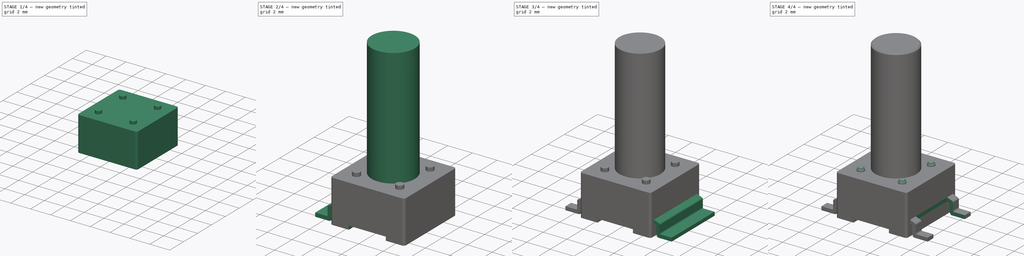
[diagram: build sequence overview — one tinted view per stage of 4, left to right]
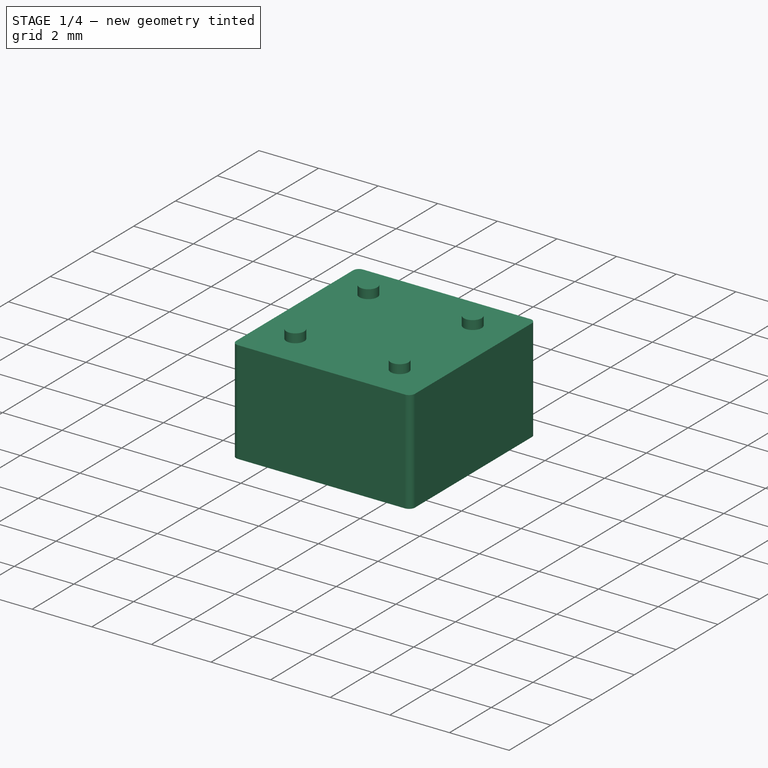
[diagram: stage 1 of 4 — iso view after this stage's code; geometry added in this stage tinted green]
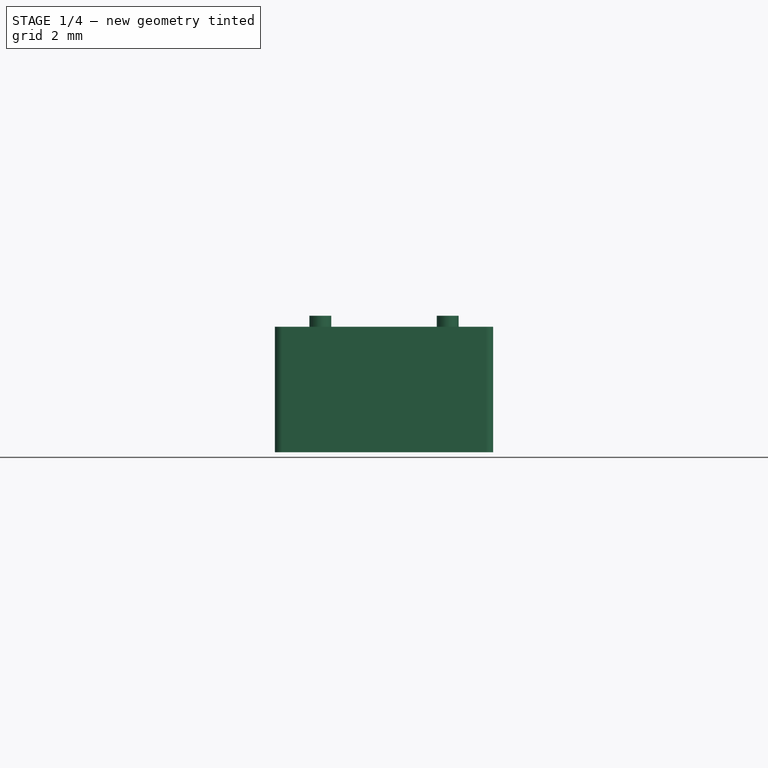
[diagram: stage 1 of 4 — front view after this stage's code; geometry added in this stage tinted green]
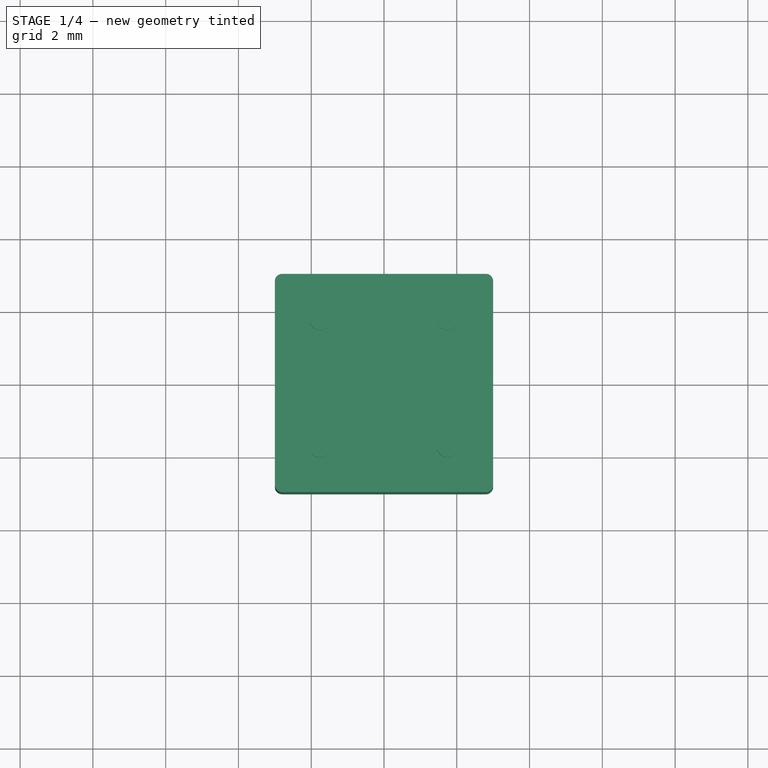
[diagram: stage 1 of 4 — top view after this stage's code; geometry added in this stage tinted green]
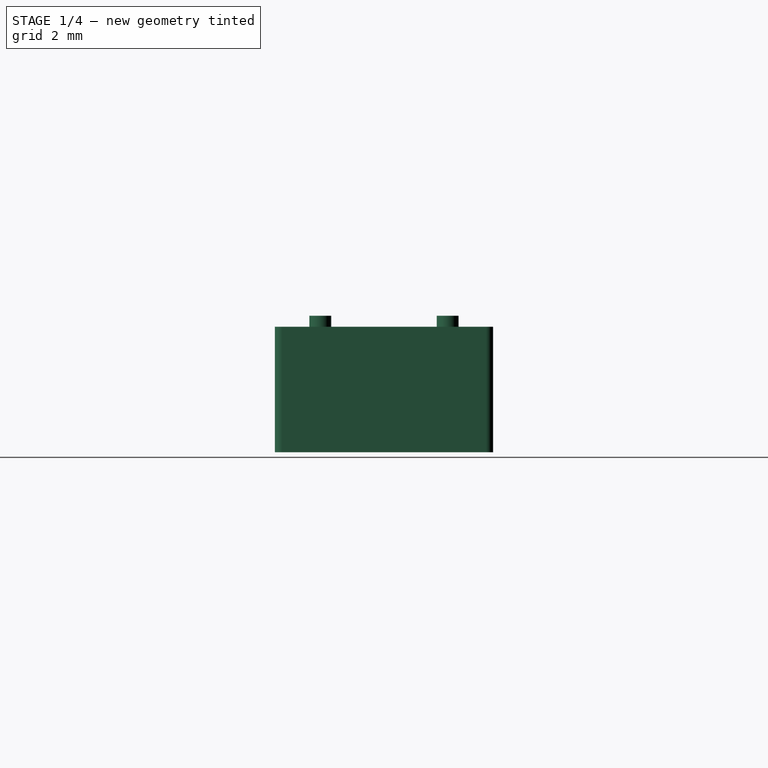
[diagram: stage 1 of 4 — right view after this stage's code; geometry added in this stage tinted green]
FCSTD DOCUMENT  (FreeCAD 1.0R39109 (Git))
Label: Tactile_Switch
License: All rights reserved
LicenseURL: https://en.wikipedia.org/wiki/All_rights_reserved
objects: Sketcher::SketchObject×9, PartDesign::Pad×6, PartDesign::Pocket×3, Part::Feature×1, PartDesign::SubShapeBinder×1, PartDesign::Fillet×1, PartDesign::Chamfer×1, PartDesign::Body×1
note: 54 computed .brp shape members not serialized (recipe doc carries the construction recipe); baked Part::Feature solids carry a one-line shape summary decoded from their .brp

FEATURE [Part::Feature] Part__Feature  label="SW_SPST_PTS645"
  shape: bbox 9 x 6 x 4.3 mm, 97 faces (baked)
FEATURE [PartDesign::SubShapeBinder] Binder
  BindCopyOnChange = 0
  BindMode = 0
  ClaimChildren = false
  Context = -> Body [Binder.]
  Fuse = false
  MakeFace = true
  OffsetFill = false
  OffsetIntersection = false
  OffsetJoinType = 0
  OffsetOpenResult = false
  PartialLoad = false
  Refine = true
  Relative = true
  Support = -> [Part__Feature]
  _Version = 2
FEATURE [Sketcher::SketchObject] Sketch
  ArcFitTolerance = 1e-06
  AttachmentSupport = -> [XY_Plane]
  ExternalGeometry = -> [Binder]
  FullyConstrained = false
  MakeInternals = false
  MapMode = 5
  sketch-geometry (8):
    g0: LineSegment StartX=-2.8 StartY=3 StartZ=0 EndX=2.8 EndY=3 EndZ=0
    g1: LineSegment StartX=3 StartY=2.8 StartZ=0 EndX=3 EndY=-2.8 EndZ=0
    g2: LineSegment StartX=-3 StartY=-2.8 StartZ=0 EndX=-3 EndY=2.8 EndZ=0
    g3: LineSegment StartX=-2.8 StartY=-3 StartZ=0 EndX=2.8 EndY=-3 EndZ=0
    g4: ArcOfCircle CenterX=-2.8 CenterY=2.8 CenterZ=0 NormalX=0 NormalY=0 NormalZ=1 AngleXU=0 Radius=0.2 StartAngle=1.5708 EndAngle=3.14159
    g5: ArcOfCircle CenterX=2.8 CenterY=2.8 CenterZ=0 NormalX=0 NormalY=0 NormalZ=1 AngleXU=0 Radius=0.2 StartAngle=0 EndAngle=1.5708
    g6: ArcOfCircle CenterX=2.8 CenterY=-2.8 CenterZ=0 NormalX=0 NormalY=0 NormalZ=1 AngleXU=0 Radius=0.2 StartAngle=4.71239 EndAngle=6.28318
    g7: ArcOfCircle CenterX=-2.8 CenterY=-2.8 CenterZ=0 NormalX=0 NormalY=0 NormalZ=1 AngleXU=0 Radius=0.2 StartAngle=3.14159 EndAngle=4.71239
  constraints (12):
    c: Coincident(g4,g-3)
    c: Coincident(g4,g2)
    c: Coincident(g4,g0)
    c: Coincident(g5,g-5)
    c: Coincident(g5,g0)
    c: Coincident(g5,g1)
    c: Coincident(g6,g-7)
    c: Coincident(g6,g1)
    c: Coincident(g6,g3)
    c: Coincident(g7,g-9)
    c: Coincident(g7,g3)
    c: Coincident(g7,g2)
FEATURE [PartDesign::Pad] Pad
  Direction = (0,0,1)
  Length = 3.45
  Length2 = 10
  Profile = -> Sketch
  ReferenceAxis = -> Sketch [N_Axis]
  Refine = true
  Suppressed = false
  Type = 0
FEATURE [Sketcher::SketchObject] Sketch002
  ArcFitTolerance = 1e-06
  ExternalGeometry = -> [Binder]
  FullyConstrained = true
  MakeInternals = false
  MapMode = 5
  Placement = pos=(0,0,3.45) rot=(0,0,1;0rad)
  sketch-geometry (4):
    g0: Circle CenterX=-1.75 CenterY=1.75 CenterZ=0 NormalX=0 NormalY=0 NormalZ=1 AngleXU=0 Radius=0.3
    g1: Circle CenterX=1.75 CenterY=1.75 CenterZ=0 NormalX=0 NormalY=0 NormalZ=1 AngleXU=0 Radius=0.3
    g2: Circle CenterX=1.75 CenterY=-1.75 CenterZ=0 NormalX=0 NormalY=0 NormalZ=1 AngleXU=0 Radius=0.3
    g3: Circle CenterX=-1.75 CenterY=-1.75 CenterZ=0 NormalX=0 NormalY=0 NormalZ=1 AngleXU=0 Radius=0.3
  constraints (8):
    c: Coincident(g0,g-3)
    c: Equal(g0,g-3)
    c: Coincident(g1,g-4)
    c: Equal(g1,g-4)
    c: Coincident(g2,g-5)
    c: Equal(g2,g-5)
    c: Coincident(g3,g-6)
    c: Equal(g3,g-6)
FEATURE [PartDesign::Pad] Pad001
  BaseFeature = -> Pad
  Direction = (0,0,1)
  Length = 0.05
  Length2 = 10
  Profile = -> Sketch002
  ReferenceAxis = -> Sketch002 [N_Axis]
  Refine = true
  Suppressed = false
  Type = 0
FEATURE [Sketcher::SketchObject] Sketch003
  ArcFitTolerance = 1e-06
  AttachmentSupport = -> [Pad001]
  ExternalGeometry = -> [Pad001]
  FullyConstrained = true
  MakeInternals = false
  MapMode = 5
  Placement = pos=(0,0,3.5) rot=(0,0,1;0rad)
  sketch-geometry (4):
    g0: Circle CenterX=-1.75 CenterY=1.75 CenterZ=0 NormalX=0 NormalY=0 NormalZ=1 AngleXU=0 Radius=0.3
    g1: Circle CenterX=1.75 CenterY=1.75 CenterZ=0 NormalX=0 NormalY=0 NormalZ=1 AngleXU=0 Radius=0.3
    g2: Circle CenterX=1.75 CenterY=-1.75 CenterZ=0 NormalX=0 NormalY=0 NormalZ=1 AngleXU=0 Radius=0.3
    g3: Circle CenterX=-1.75 CenterY=-1.75 CenterZ=0 NormalX=0 NormalY=0 NormalZ=1 AngleXU=0 Radius=0.3
  constraints (8):
    c: Coincident(g0,g-3)
    c: Equal(g0,g-3)
    c: Coincident(g1,g-4)
    c: Equal(g1,g-4)
    c: Coincident(g2,g-5)
    c: Equal(g2,g-5)
    c: Coincident(g3,g-6)
    c: Equal(g3,g-6)
FEATURE [PartDesign::Pad] Pad002
  BaseFeature = -> Pad001
  Direction = (0,0,1)
  Length = 0.25
  Length2 = 10
  Profile = -> Sketch003
  ReferenceAxis = -> Sketch003 [N_Axis]
  Refine = true
  Suppressed = false
  Type = 0
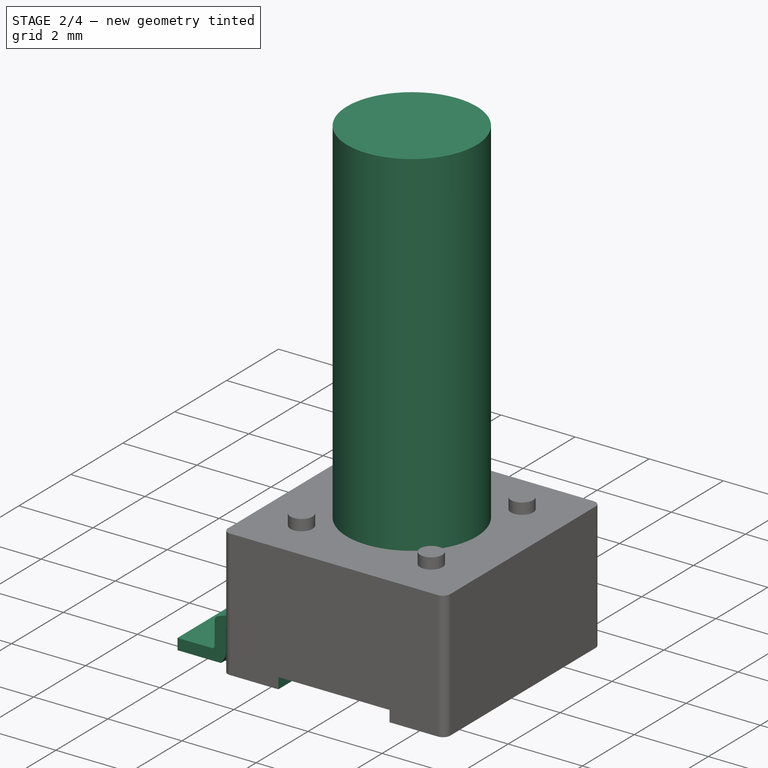
[diagram: stage 2 of 4 — iso view after this stage's code; geometry added in this stage tinted green]
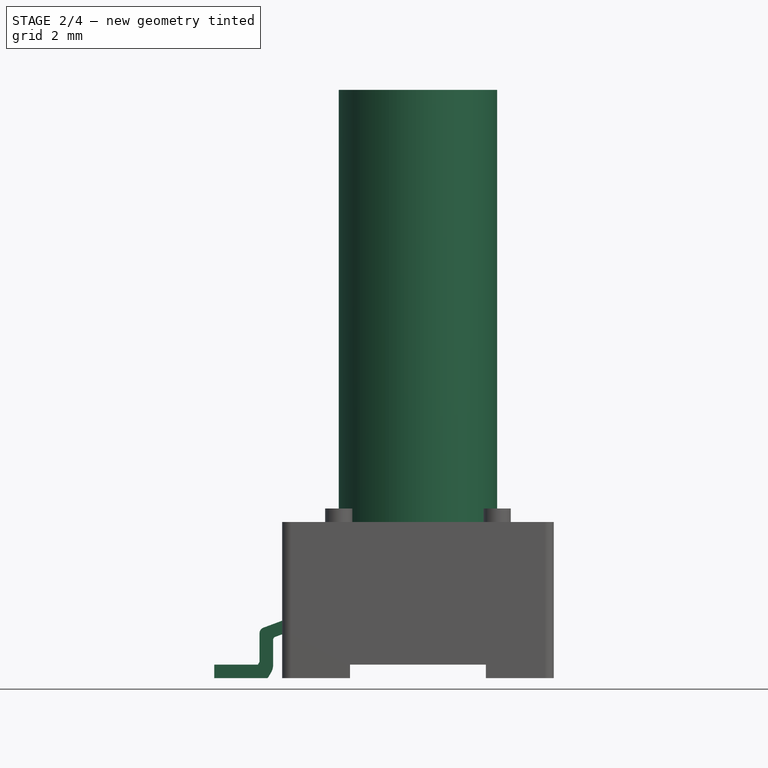
[diagram: stage 2 of 4 — front view after this stage's code; geometry added in this stage tinted green]
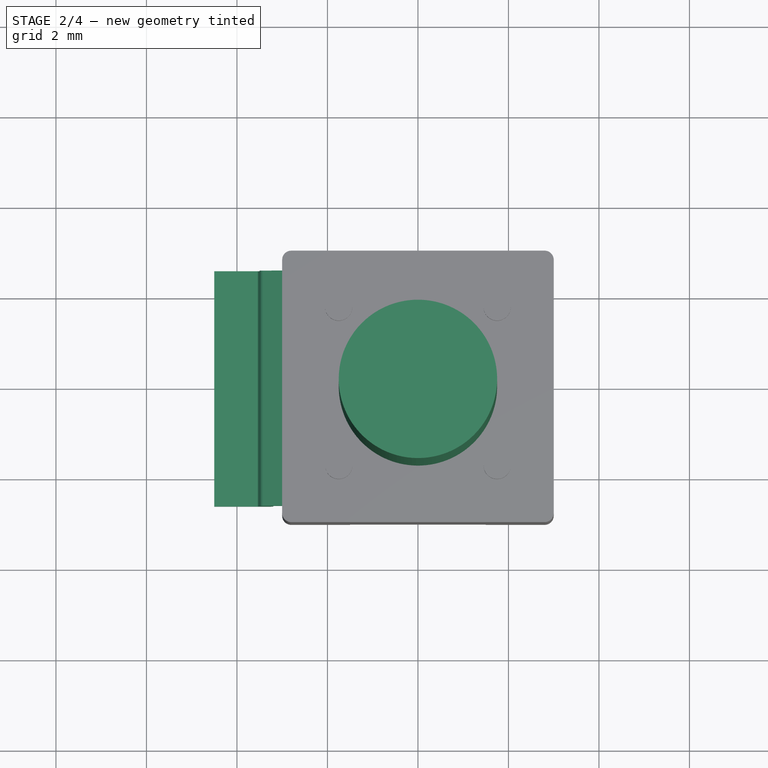
[diagram: stage 2 of 4 — top view after this stage's code; geometry added in this stage tinted green]
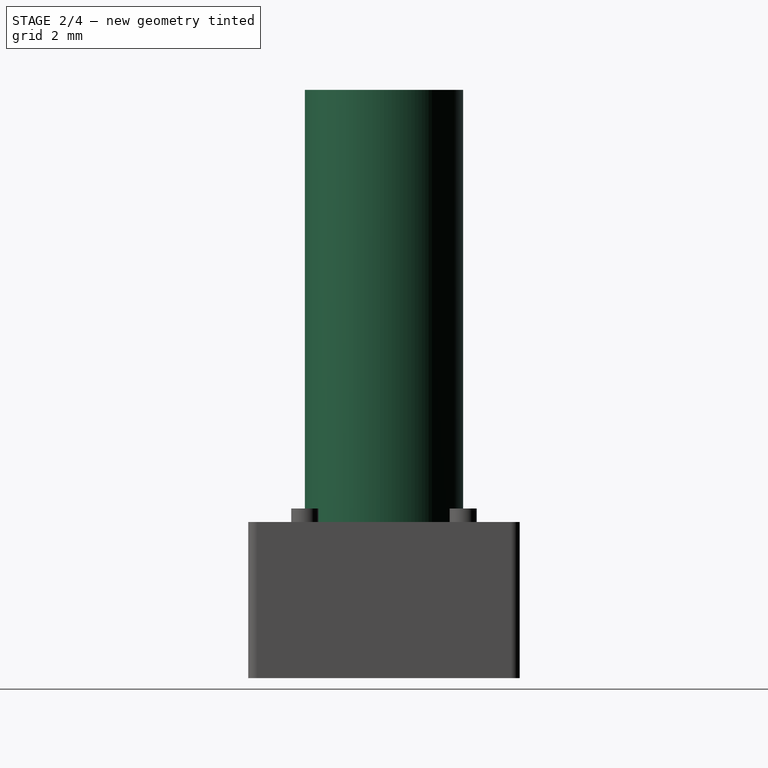
[diagram: stage 2 of 4 — right view after this stage's code; geometry added in this stage tinted green]
FEATURE [Sketcher::SketchObject] Sketch004
  ArcFitTolerance = 1e-06
  AttachmentSupport = -> [XY_Plane]
  ExternalGeometry = -> [Binder]
  FullyConstrained = false
  MakeInternals = false
  MapMode = 5
  sketch-geometry (1):
    g0: Circle CenterX=0 CenterY=0 CenterZ=0 NormalX=0 NormalY=0 NormalZ=1 AngleXU=0 Radius=1.75
  constraints (1):
    c: Coincident(g0,g-1)
FEATURE [PartDesign::Pad] Pad003
  BaseFeature = -> Pad002
  Direction = (0,0,1)
  Length = 13
  Length2 = 10
  Profile = -> Sketch004
  ReferenceAxis = -> Sketch004 [N_Axis]
  Refine = true
  Suppressed = false
  Type = 0
FEATURE [Sketcher::SketchObject] Sketch005
  ArcFitTolerance = 1e-06
  AttachmentSupport = -> [XZ_Plane]
  ExternalGeometry = -> [Binder]
  FullyConstrained = true
  MakeInternals = false
  MapMode = 5
  Placement = pos=(0,0,0) rot=(1,0,0;1.5708rad)
  sketch-geometry (4):
    g0: LineSegment StartX=-1.5 StartY=0 StartZ=0 EndX=1.5 EndY=0 EndZ=0
    g1: LineSegment StartX=1.5 StartY=0 StartZ=0 EndX=1.5 EndY=0.3 EndZ=0
    g2: LineSegment StartX=1.5 StartY=0.3 StartZ=0 EndX=-1.5 EndY=0.3 EndZ=0
    g3: LineSegment StartX=-1.5 StartY=0.3 StartZ=0 EndX=-1.5 EndY=0 EndZ=0
  constraints (10):
    c: Coincident(g0,g1)
    c: Coincident(g1,g2)
    c: Coincident(g2,g3)
    c: Coincident(g3,g0)
    c: Horizontal(g0)
    c: Horizontal(g2)
    c: Vertical(g1)
    c: Vertical(g3)
    c: Coincident(g0,g-3)
    c: Coincident(g1,g-5)
FEATURE [PartDesign::Pocket] Pocket
  BaseFeature = -> Pad003
  Direction = (0,1,-2e-16)
  Length = 5
  Length2 = 5
  Midplane = true
  Profile = -> Sketch005
  ReferenceAxis = -> Sketch005 [N_Axis]
  Refine = true
  Suppressed = false
  Type = 1
FEATURE [Sketcher::SketchObject] Sketch006
  ArcFitTolerance = 1e-06
  AttachmentOffset = pos=(2,0,0) rot=(0,0,1;0rad)
  AttachmentSupport = -> [XZ_Plane]
  ExternalGeometry = -> [Binder]
  FullyConstrained = false
  MakeInternals = false
  MapMode = 5
  Placement = pos=(2,0,0) rot=(1,0,0;1.5708rad)
  sketch-geometry (14):
    g0: LineSegment StartX=-6.5 StartY=5.52194e-11 StartZ=0 EndX=-6.5 EndY=0.3 EndZ=0
    g1: LineSegment StartX=-6.5 StartY=0.3 StartZ=0 EndX=-5.53695 EndY=0.3 EndZ=0
    g2: LineSegment StartX=-5.53695 StartY=0.3 StartZ=0 EndX=-5.5 EndY=0.361071 EndZ=0
    g3: LineSegment StartX=-5.5 StartY=0.361071 StartZ=0 EndX=-5.5 EndY=0.996277 EndZ=0
    g4: LineSegment StartX=-5.41848 StartY=1.11365 StartZ=0 EndX=-5 EndY=1.26958 EndZ=0
    g5: LineSegment StartX=-5 StartY=1.26958 StartZ=0 EndX=-5 EndY=0.969575 EndZ=0
    g6: LineSegment StartX=-5 StartY=0.969575 StartZ=0 EndX=-5.15341 EndY=0.912414 EndZ=0
    g7: LineSegment StartX=-5.2 StartY=0.84534 StartZ=0 EndX=-5.2 EndY=0.293493 EndZ=0
    g8: LineSegment StartX=-5.31057 StartY=0.0155988 StartZ=0 EndX=-5.24927 EndY=0.11691 EndZ=0
    g9: ArcOfCircle CenterX=-5.33824 CenterY=0.032343 CenterZ=0 NormalX=0 NormalY=0 NormalZ=1 AngleXU=0 Radius=0.032343 StartAngle=4.71245 EndAngle=5.73902
    g10: LineSegment StartX=-5.33824 StartY=5.52194e-11 StartZ=0 EndX=-6.5 EndY=5.52194e-11 EndZ=0
    g11: ArcOfCircle CenterX=-5.37474 CenterY=0.996277 CenterZ=0 NormalX=0 NormalY=0 NormalZ=1 AngleXU=0 Radius=0.125258 StartAngle=1.92746 EndAngle=3.14159
    g12: ArcOfCircle CenterX=-5.54109 CenterY=0.293493 CenterZ=0 NormalX=0 NormalY=0 NormalZ=1 AngleXU=0 Radius=0.341088 StartAngle=5.73902 EndAngle=6.28319
    g13: ArcOfCircle CenterX=-5.12842 CenterY=0.84534 CenterZ=0 NormalX=0 NormalY=0 NormalZ=1 AngleXU=0 Radius=0.071579 StartAngle=1.92746 EndAngle=3.14159
  constraints (30):
    c: Coincident(g0,g-9)
    c: Coincident(g0,g-8)
    c: Coincident(g1,g0)
    c: Coincident(g1,g-7)
    c: Coincident(g2,g1)
    c: Coincident(g2,g-6)
    c: Coincident(g3,g2)
    c: Coincident(g3,g-5)
    c: Coincident(g4,g-4)
    c: Coincident(g4,g-16)
    c: Coincident(g5,g4)
    c: Coincident(g5,g-16)
    c: Coincident(g6,g5)
    c: Coincident(g6,g-15)
    c: Coincident(g7,g-14)
    c: Coincident(g7,g-13)
    c: Coincident(g8,g-11)
    c: Coincident(g8,g-12)
    c: Coincident(g9,g-10)
    c: Coincident(g9,g8)
    c: Coincident(g10,g9)
    c: Coincident(g10,g0)
    c: Horizontal(g10)
    c: Coincident(g11,g3)
    c: PointOnObject(g11,g4)
    c: Coincident(g11,g-4)
    c: Coincident(g12,g-12)
    c: Coincident(g12,g7)
    c: Coincident(g-14,g13)
    c: Coincident(g13,g7)
FEATURE [PartDesign::Pad] Pad004
  BaseFeature = -> Pocket
  Direction = (0,-1,2e-16)
  Length = 5.2
  Length2 = 10
  Midplane = true
  Profile = -> Sketch006
  ReferenceAxis = -> Sketch006 [N_Axis]
  Refine = true
  Suppressed = false
  Type = 0
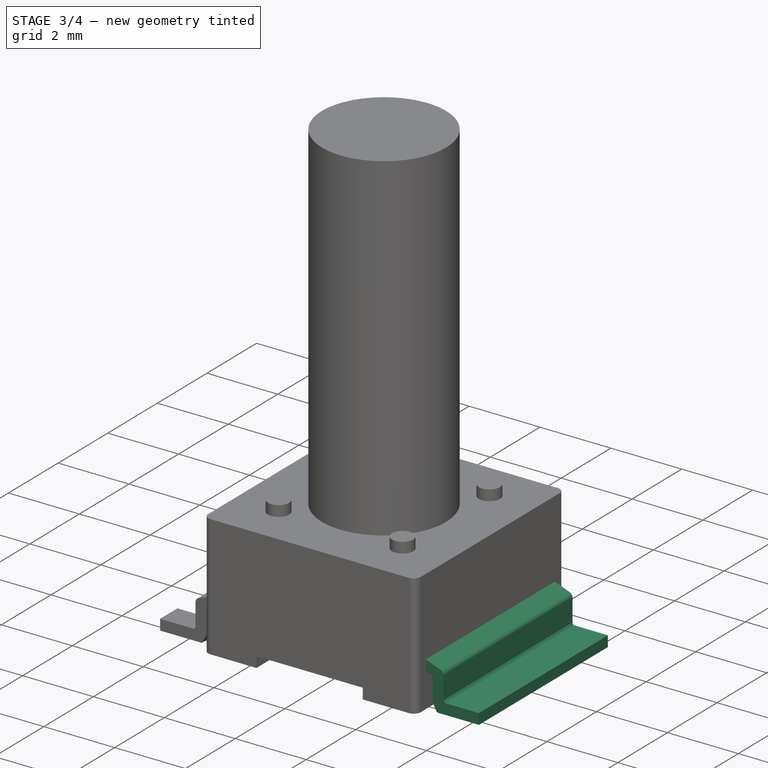
[diagram: stage 3 of 4 — iso view after this stage's code; geometry added in this stage tinted green]
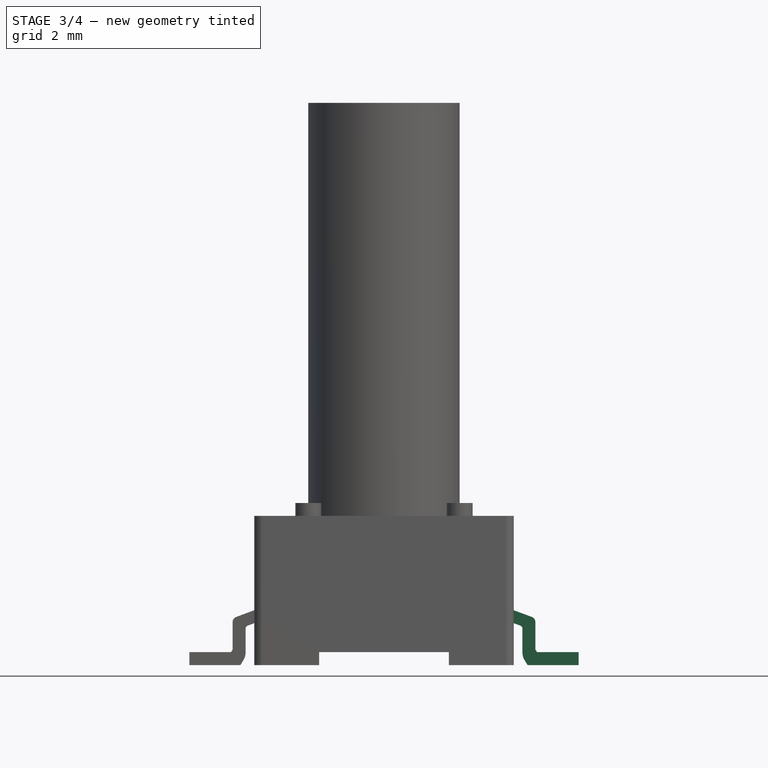
[diagram: stage 3 of 4 — front view after this stage's code; geometry added in this stage tinted green]
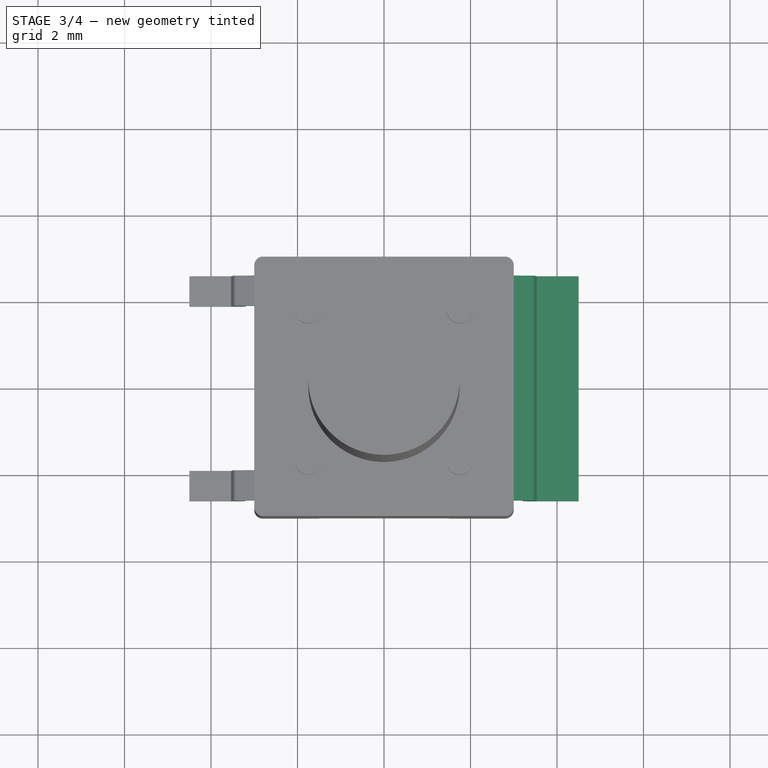
[diagram: stage 3 of 4 — top view after this stage's code; geometry added in this stage tinted green]
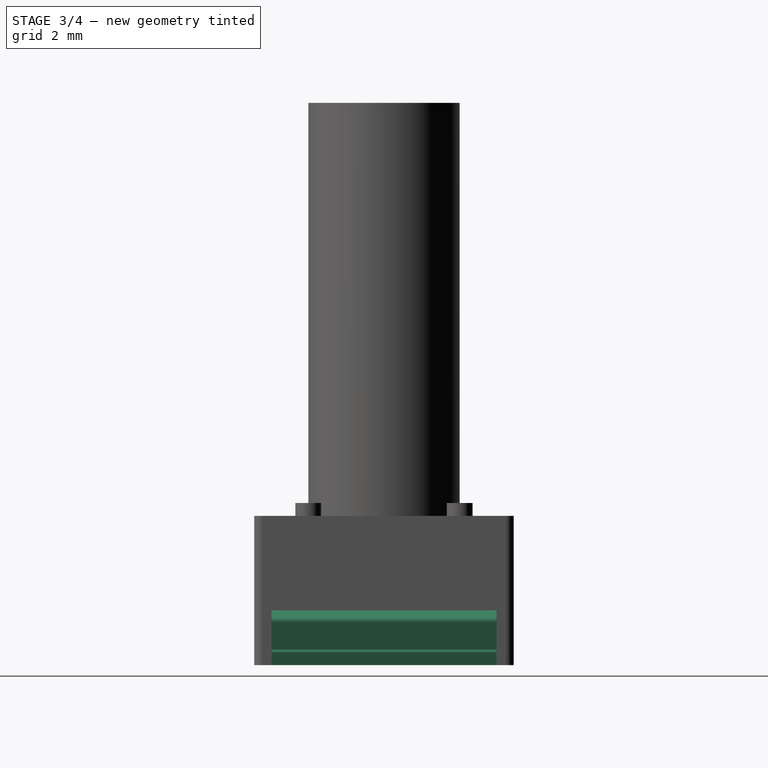
[diagram: stage 3 of 4 — right view after this stage's code; geometry added in this stage tinted green]
FEATURE [Sketcher::SketchObject] Sketch007
  ArcFitTolerance = 1e-06
  AttachmentSupport = -> [XY_Plane]
  ExternalGeometry = -> [Binder]
  FullyConstrained = true
  MakeInternals = false
  MapMode = 5
  sketch-geometry (4):
    g0: LineSegment StartX=-4.5 StartY=1.9 StartZ=0 EndX=-4.5 EndY=-1.9 EndZ=0
    g1: LineSegment StartX=-4.5 StartY=-1.9 StartZ=0 EndX=-3 EndY=-1.9 EndZ=0
    g2: LineSegment StartX=-3 StartY=-1.9 StartZ=0 EndX=-3 EndY=1.9 EndZ=0
    g3: LineSegment StartX=-3 StartY=1.9 StartZ=0 EndX=-4.5 EndY=1.9 EndZ=0
  constraints (10):
    c: Coincident(g0,g1)
    c: Coincident(g1,g2)
    c: Coincident(g2,g3)
    c: Coincident(g3,g0)
    c: Vertical(g2)
    c: Horizontal(g1)
    c: Horizontal(g3)
    c: Coincident(g0,g-3)
    c: PointOnObject(g1,g-4)
    c: Coincident(g0,g-5)
FEATURE [PartDesign::Pocket] Pocket001
  BaseFeature = -> Pad004
  Direction = (0,0,-1)
  Length = 5
  Length2 = 5
  Profile = -> Sketch007
  ReferenceAxis = -> Sketch007 [N_Axis]
  Refine = true
  Reversed = true
  Suppressed = false
  Type = 0
FEATURE [Sketcher::SketchObject] Sketch008
  ArcFitTolerance = 1e-06
  AttachmentSupport = -> [XZ_Plane]
  ExternalGeometry = -> [Binder]
  FullyConstrained = false
  MakeInternals = false
  MapMode = 5
  Placement = pos=(0,0,0) rot=(1,0,0;1.5708rad)
  sketch-geometry (14):
    g0: LineSegment StartX=3 StartY=0.969575 StartZ=0 EndX=3 EndY=1.26958 EndZ=0
    g1: LineSegment StartX=3 StartY=1.26958 StartZ=0 EndX=3.41848 EndY=1.11365 EndZ=0
    g2: LineSegment StartX=3 StartY=0.969575 StartZ=0 EndX=3.15341 EndY=0.912414 EndZ=0
    g3: LineSegment StartX=3.2 StartY=0.84534 StartZ=0 EndX=3.2 EndY=0.293493 EndZ=0
    g4: LineSegment StartX=3.24927 StartY=0.11691 StartZ=0 EndX=3.31057 EndY=0.0155988 EndZ=0
    g5: LineSegment StartX=3.33824 StartY=-6e-16 StartZ=0 EndX=4.5 EndY=0 EndZ=0
    g6: LineSegment StartX=4.5 StartY=0 StartZ=0 EndX=4.5 EndY=0.3 EndZ=0
    g7: LineSegment StartX=4.5 StartY=0.3 StartZ=0 EndX=3.53695 EndY=0.3 EndZ=0
    g8: LineSegment StartX=3.53695 StartY=0.3 StartZ=0 EndX=3.5 EndY=0.361071 EndZ=0
    g9: LineSegment StartX=3.5 StartY=0.361071 StartZ=0 EndX=3.5 EndY=0.996277 EndZ=0
    g10: ArcOfCircle CenterX=3.37487 CenterY=0.996367 CenterZ=0 NormalX=0 NormalY=0 NormalZ=1 AngleXU=0 Radius=0.125128 StartAngle=6.28246 EndAngle=7.49804
    g11: ArcOfCircle CenterX=3.12842 CenterY=0.84534 CenterZ=0 NormalX=0 NormalY=0 NormalZ=1 AngleXU=0 Radius=0.071579 StartAngle=0 EndAngle=1.21413
    g12: ArcOfCircle CenterX=3.33845 CenterY=0.0327083 CenterZ=0 NormalX=0 NormalY=0 NormalZ=1 AngleXU=0 Radius=0.032709 StartAngle=3.69206 EndAngle=4.70609
    g13: ArcOfCircle CenterX=3.53682 CenterY=0.292302 CenterZ=0 NormalX=0 NormalY=0 NormalZ=1 AngleXU=0 Radius=0.33682 StartAngle=3.13806 EndAngle=3.6893
  constraints (29):
    c: Coincident(g0,g-15)
    c: Coincident(g0,g-3)
    c: Coincident(g1,g0)
    c: Coincident(g1,g-4)
    c: Coincident(g2,g0)
    c: Coincident(g2,g-15)
    c: Coincident(g3,g-14)
    c: Coincident(g5,g-9)
    c: Coincident(g6,g5)
    c: Coincident(g6,g-8)
    c: Coincident(g7,g6)
    c: Coincident(g7,g-7)
    c: Coincident(g8,g7)
    c: Coincident(g8,g-6)
    c: Coincident(g11,g-14)
    c: Coincident(g11,g-14)
    c: Coincident(g11,g3)
    c: Coincident(g9,g8)
    c: Coincident(g10,g1)
    c: Coincident(g10,g-5)
    c: Coincident(g9,g10)
    c: Coincident(g12,g5)
    c: Coincident(g5,g-10)
    c: Coincident(g12,g4)
    c: Coincident(g4,g-11)
    c: Coincident(g13,g4)
    c: Coincident(g4,g-12)
    c: Coincident(g13,g3)
    c: Coincident(g3,g-13)
FEATURE [PartDesign::Pad] Pad005
  BaseFeature = -> Pocket001
  Direction = (0,-1,2e-16)
  Length = 5.2
  Length2 = 10
  Midplane = true
  Profile = -> Sketch008
  ReferenceAxis = -> Sketch008 [N_Axis]
  Refine = true
  Suppressed = false
  Type = 0
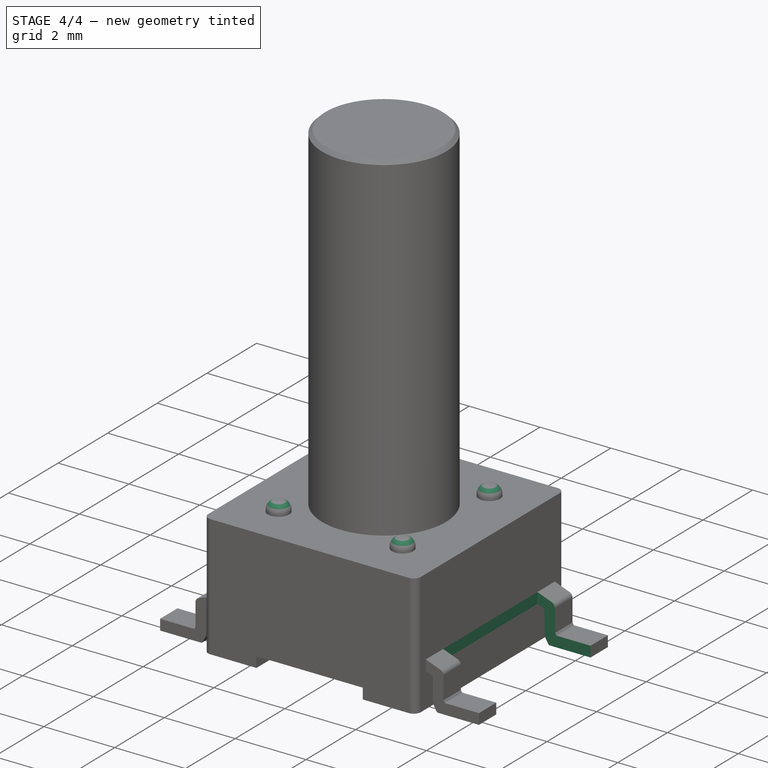
[diagram: stage 4 of 4 — iso view after this stage's code; geometry added in this stage tinted green]
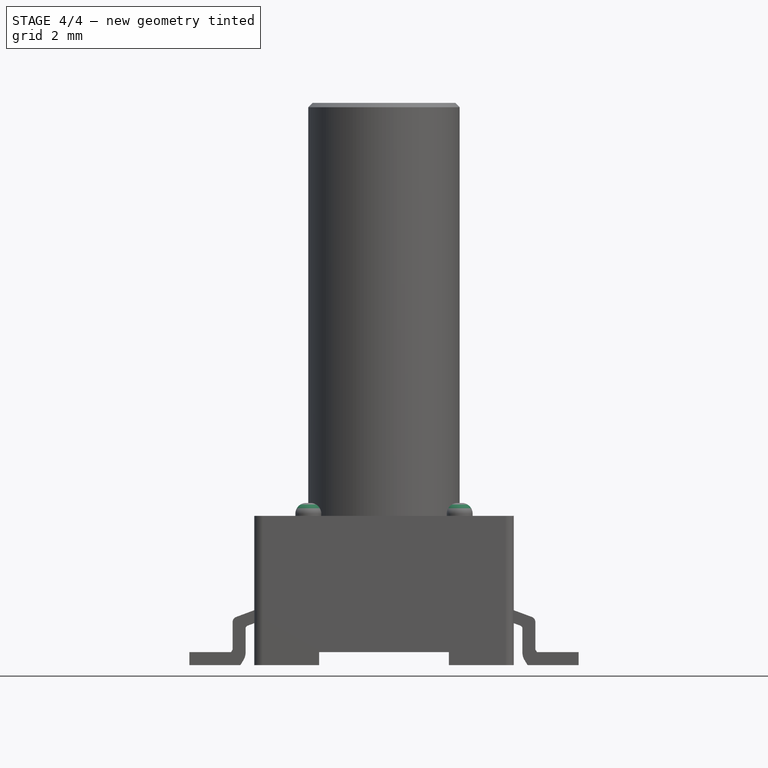
[diagram: stage 4 of 4 — front view after this stage's code; geometry added in this stage tinted green]
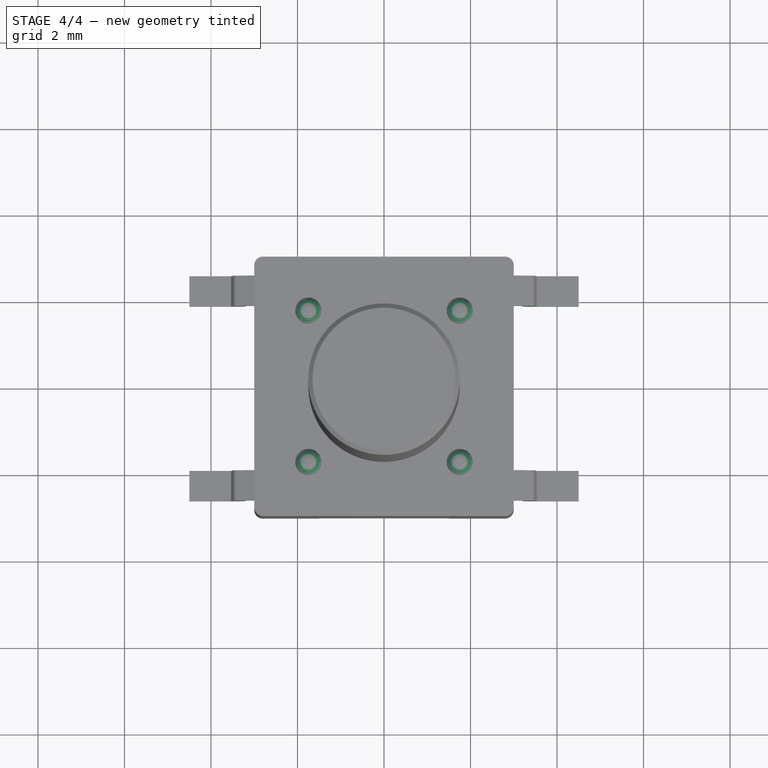
[diagram: stage 4 of 4 — top view after this stage's code; geometry added in this stage tinted green]
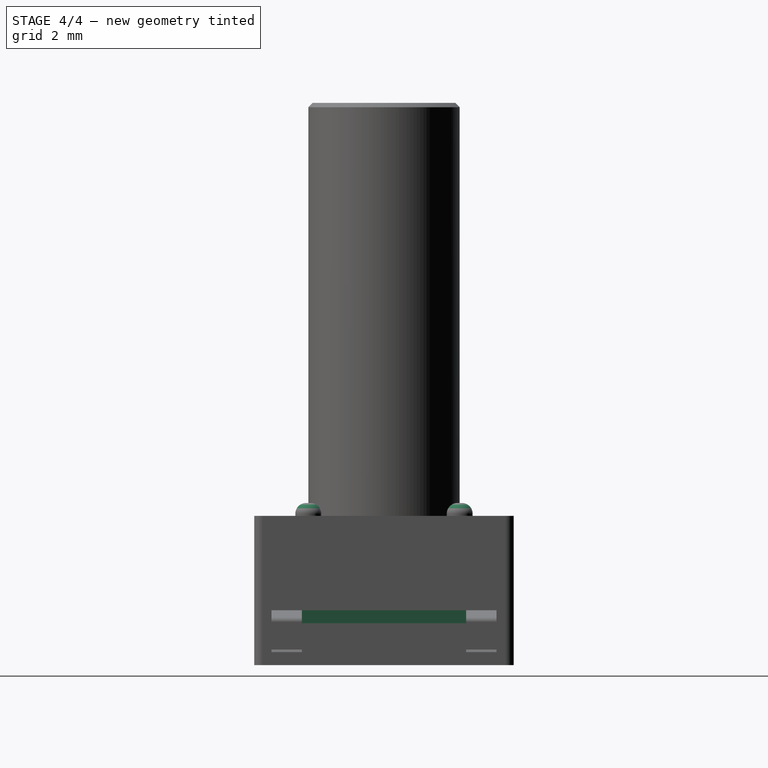
[diagram: stage 4 of 4 — right view after this stage's code; geometry added in this stage tinted green]
FEATURE [Sketcher::SketchObject] Sketch009
  ArcFitTolerance = 1e-06
  AttachmentSupport = -> [XY_Plane]
  ExternalGeometry = -> [Binder]
  FullyConstrained = true
  MakeInternals = false
  MapMode = 5
  sketch-geometry (4):
    g0: LineSegment StartX=4.5 StartY=1.9 StartZ=0 EndX=3 EndY=1.9 EndZ=0
    g1: LineSegment StartX=3 StartY=1.9 StartZ=0 EndX=3 EndY=-1.9 EndZ=0
    g2: LineSegment StartX=3 StartY=-1.9 StartZ=0 EndX=4.5 EndY=-1.9 EndZ=0
    g3: LineSegment StartX=4.5 StartY=-1.9 StartZ=0 EndX=4.5 EndY=1.9 EndZ=0
  constraints (10):
    c: Coincident(g0,g1)
    c: Coincident(g1,g2)
    c: Coincident(g2,g3)
    c: Coincident(g3,g0)
    c: Horizontal(g0)
    c: Horizontal(g2)
    c: Vertical(g1)
    c: Coincident(g0,g-3)
    c: PointOnObject(g1,g-5)
    c: Coincident(g2,g-4)
FEATURE [PartDesign::Pocket] Pocket002
  BaseFeature = -> Pad005
  Direction = (0,0,-1)
  Length = 5
  Length2 = 5
  Profile = -> Sketch009
  ReferenceAxis = -> Sketch009 [N_Axis]
  Refine = true
  Reversed = true
  Suppressed = false
  Type = 0
FEATURE [PartDesign::Fillet] Fillet
  Base = -> Pocket002 [Edge51,Edge1,Edge49,Edge47]
  BaseFeature = -> Pocket002
  Radius = 0.25
  Refine = true
  SupportTransform = false
  Suppressed = false
  UseAllEdges = false
FEATURE [PartDesign::Chamfer] Chamfer
  Angle = 45
  Base = -> Fillet [Edge65]
  BaseFeature = -> Fillet
  ChamferType = 0
  FlipDirection = false
  Refine = true
  Size = 0.1
  Size2 = 1
  SupportTransform = false
  Suppressed = false
  UseAllEdges = false
FEATURE [PartDesign::Body] Body  label="13mm"
  AllowCompound = false
  Group = -> [Binder,Sketch,Pad,Sketch002,Pad001,Sketch003,Pad002,Sketch004,Pad003,Sketch005,Pocket,Sketch006,Pad004,Sketch007,Pocket001,Sketch008,Pad005,Sketch009,Pocket002,Fillet,Chamfer]
  Origin = -> Origin
  Tip = -> Chamfer
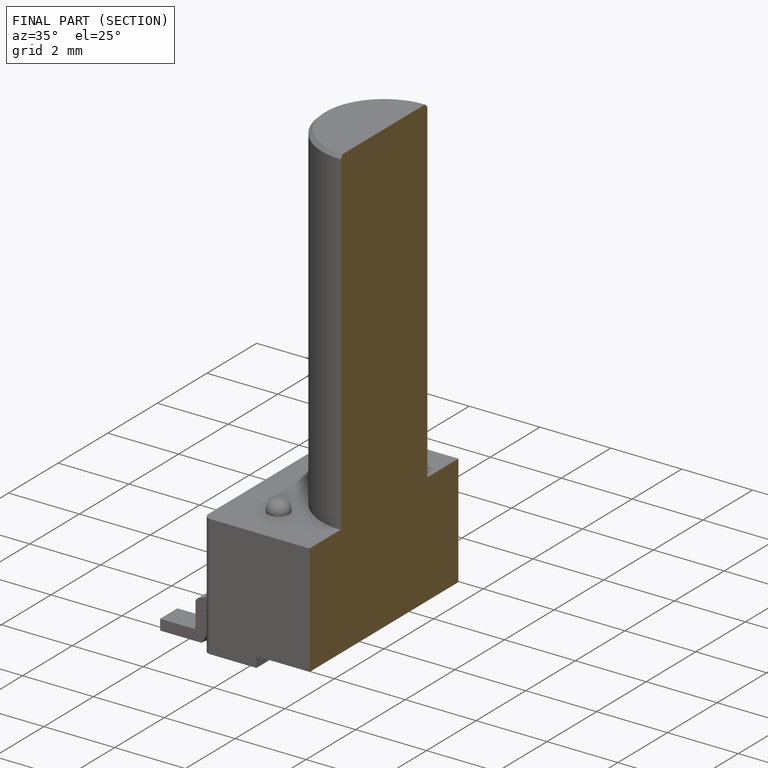
[diagram: finished part — half-section view (interior)]
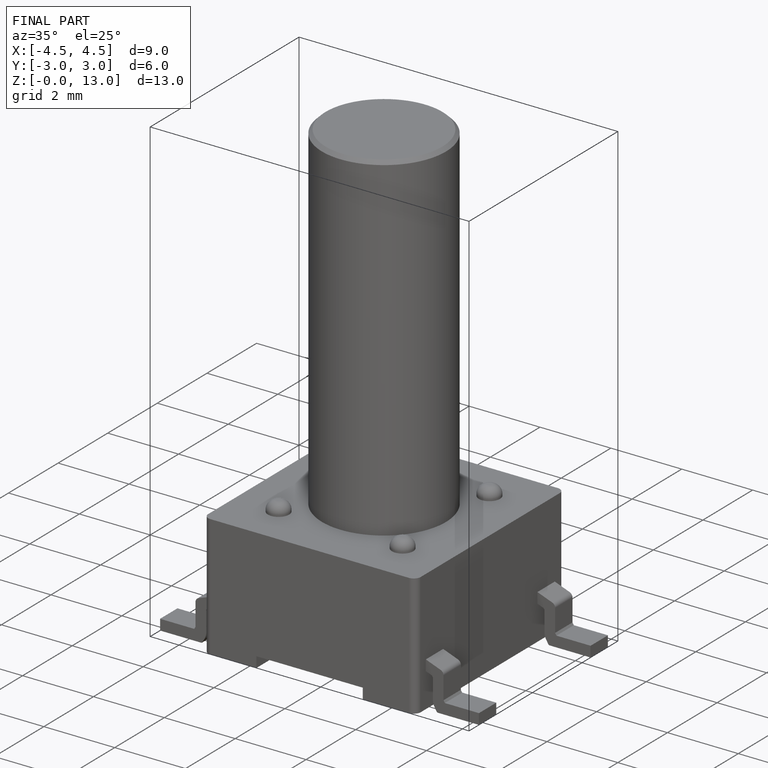
[diagram: finished part — iso view with bounding-box wireframe]
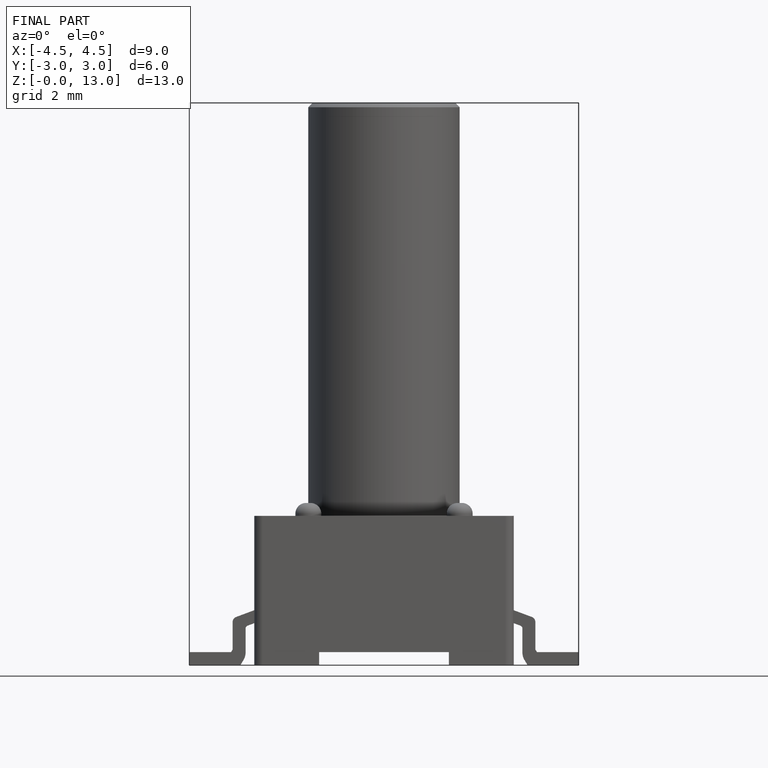
[diagram: finished part — front view with bounding-box wireframe]
